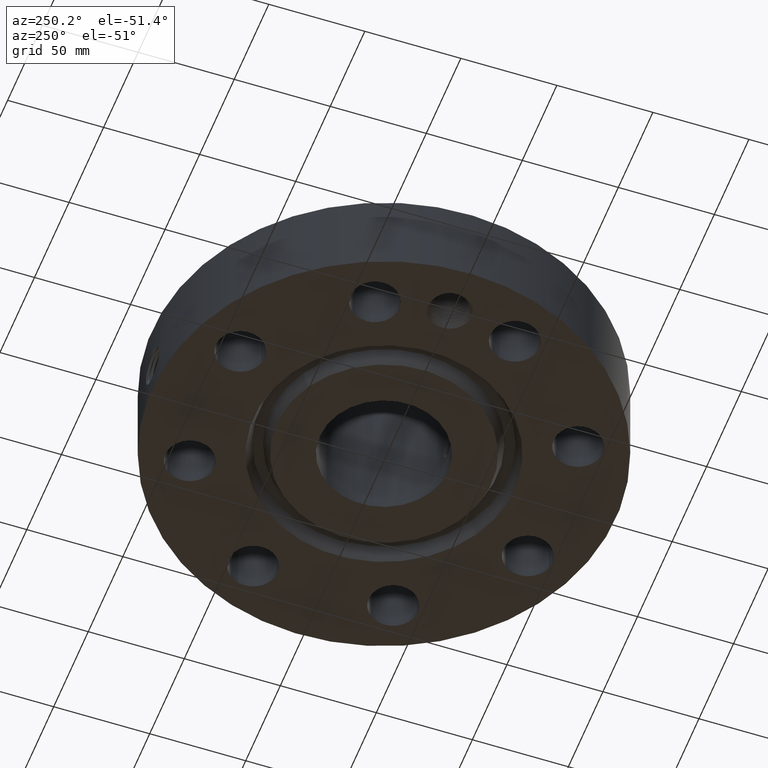
[diagram: clean part render]
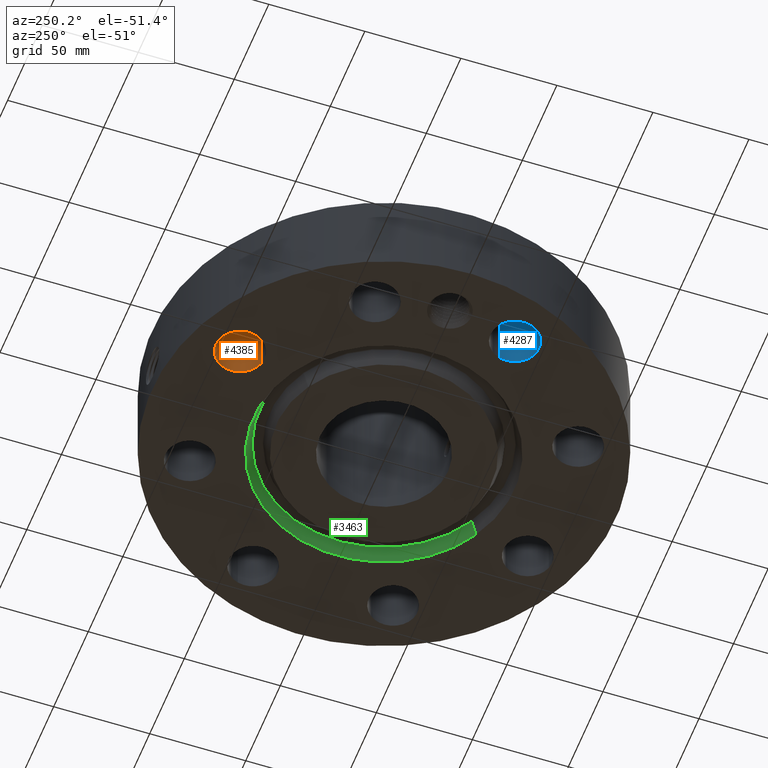
[diagram: same view with three faces highlighted in distinct colors, each labeled with its STEP entity id]
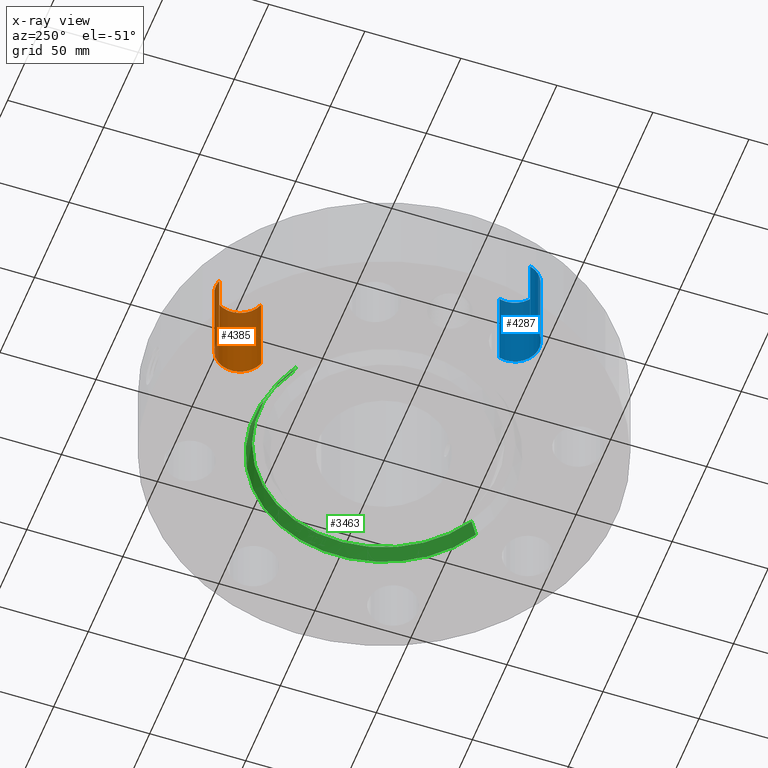
[diagram: x-ray of the same camera — body ghosted, the three highlighted faces saturated]
A machine part, auxiliary view with three faces highlighted in distinct colors.
The next image is the same camera in x-ray (body ghosted, the three faces saturated) — at least one of them is partly hidden behind the body in this view.
Their STEP definitions:

[orange] entity #4385 — the highlighted cylindrical surface (edge-blend (fillet) strip) has radius 12.7 mm, axis along (0, 0, -1).
#3048=AXIS2_PLACEMENT_3D('Circle Axis2P3D',#3046,#3047,$) ;
#4346=AXIS2_PLACEMENT_3D('Cylinder Axis2P3D',#4343,#4344,#4345) ;
#4376=AXIS2_PLACEMENT_3D('Circle Axis2P3D',#4374,#4375,$) ;
#3046=CARTESIAN_POINT('Axis2P3D Location',(-1.43506287137,3.46454824693,1.81200000001)) ;
#3050=CARTESIAN_POINT('Vertex',(-1.57583263695,3.94432306193,1.81200000001)) ;
#3052=CARTESIAN_POINT('Vertex',(-1.2942931058,2.98477343194,1.81200000001)) ;
#4343=CARTESIAN_POINT('Axis2P3D Location',(-1.43506287137,3.46454824693,1.80806299213)) ;
#4348=CARTESIAN_POINT('Line Origine',(-1.2942931058,2.98477343194,0.906000000004)) ;
#4352=CARTESIAN_POINT('Vertex',(-1.2942931058,2.98477343194,0.)) ;
#4359=CARTESIAN_POINT('Vertex',(-1.57583263695,3.94432306193,0.)) ;
#4362=CARTESIAN_POINT('Line Origine',(-1.57583263695,3.94432306193,0.906000000004)) ;
#4374=CARTESIAN_POINT('Axis2P3D Location',(-1.43506287137,3.46454824693,0.)) ;
#3047=DIRECTION('Axis2P3D Direction',(0.,0.,-0.0393700787402)) ;
#4344=DIRECTION('Axis2P3D Direction',(0.,0.,-0.0393700787402)) ;
#4345=DIRECTION('Axis2P3D XDirection',(-0.0110842335096,0.0377775444876,0.)) ;
#4349=DIRECTION('Vector Direction',(0.,0.,-0.0393700787402)) ;
#4363=DIRECTION('Vector Direction',(0.,0.,-0.0393700787402)) ;
#4375=DIRECTION('Axis2P3D Direction',(0.,0.,-0.0393700787402)) ;
#4350=VECTOR('Line Direction',#4349,0.0393700787402) ;
#4364=VECTOR('Line Direction',#4363,0.0393700787402) ;
#4380=ORIENTED_EDGE('',*,*,#4366,.F.) ;
#4381=ORIENTED_EDGE('',*,*,#4378,.T.) ;
#4382=ORIENTED_EDGE('',*,*,#4354,.T.) ;
#4383=ORIENTED_EDGE('',*,*,#3054,.F.) ;
#4385=ADVANCED_FACE('PartBody',(#4384),#4347,.F.) ;
#3049=CIRCLE('generated circle',#3048,0.500000000002) ;
#4377=CIRCLE('generated circle',#4376,0.500000000002) ;
#4347=CYLINDRICAL_SURFACE('generated cylinder',#4346,0.500000000002) ;
#3054=EDGE_CURVE('',#3051,#3053,#3049,.T.) ;
#4354=EDGE_CURVE('',#4353,#3053,#4351,.F.) ;
#4366=EDGE_CURVE('',#4360,#3051,#4365,.F.) ;
#4378=EDGE_CURVE('',#4360,#4353,#4377,.T.) ;
#4379=EDGE_LOOP('',(#4380,#4381,#4382,#4383)) ;
#4384=FACE_OUTER_BOUND('',#4379,.T.) ;
#4351=LINE('Line',#4348,#4350) ;
#4365=LINE('Line',#4362,#4364) ;
#3051=VERTEX_POINT('',#3050) ;
#3053=VERTEX_POINT('',#3052) ;
#4353=VERTEX_POINT('',#4352) ;
#4360=VERTEX_POINT('',#4359) ;

[blue] entity #4287 — the highlighted cylindrical surface (edge-blend (fillet) strip) has radius 12.7 mm, axis along (-0, 0, -1).
#3021=AXIS2_PLACEMENT_3D('Circle Axis2P3D',#3019,#3020,$) ;
#4260=AXIS2_PLACEMENT_3D('Cylinder Axis2P3D',#4257,#4258,#4259) ;
#4271=AXIS2_PLACEMENT_3D('Circle Axis2P3D',#4269,#4270,$) ;
#3014=CARTESIAN_POINT('Vertex',(-3.94432306193,-1.57583263695,1.81200000001)) ;
#3016=CARTESIAN_POINT('Vertex',(-2.98477343194,-1.2942931058,1.81200000001)) ;
#3019=CARTESIAN_POINT('Axis2P3D Location',(-3.46454824693,-1.43506287137,1.81200000001)) ;
#4257=CARTESIAN_POINT('Axis2P3D Location',(-3.46454824693,-1.43506287137,1.80806299213)) ;
#4262=CARTESIAN_POINT('Line Origine',(-2.98477343194,-1.2942931058,0.906000000004)) ;
#4266=CARTESIAN_POINT('Vertex',(-2.98477343194,-1.2942931058,0.)) ;
#4269=CARTESIAN_POINT('Axis2P3D Location',(-3.46454824693,-1.43506287137,0.)) ;
#4273=CARTESIAN_POINT('Vertex',(-3.94432306193,-1.57583263695,0.)) ;
#4276=CARTESIAN_POINT('Line Origine',(-3.94432306193,-1.57583263695,0.906000000004)) ;
#3020=DIRECTION('Axis2P3D Direction',(0.,0.,-0.0393700787402)) ;
#4258=DIRECTION('Axis2P3D Direction',(-0.,0.,-0.0393700787402)) ;
#4259=DIRECTION('Axis2P3D XDirection',(-0.0377775444876,-0.0110842335096,0.)) ;
#4263=DIRECTION('Vector Direction',(0.,0.,-0.0393700787402)) ;
#4270=DIRECTION('Axis2P3D Direction',(-0.,0.,-0.0393700787402)) ;
#4277=DIRECTION('Vector Direction',(0.,0.,-0.0393700787402)) ;
#4264=VECTOR('Line Direction',#4263,0.0393700787402) ;
#4278=VECTOR('Line Direction',#4277,0.0393700787402) ;
#4282=ORIENTED_EDGE('',*,*,#4268,.F.) ;
#4283=ORIENTED_EDGE('',*,*,#4275,.T.) ;
#4284=ORIENTED_EDGE('',*,*,#4280,.T.) ;
#4285=ORIENTED_EDGE('',*,*,#3023,.F.) ;
#4287=ADVANCED_FACE('PartBody',(#4286),#4261,.F.) ;
#3022=CIRCLE('generated circle',#3021,0.500000000002) ;
#4272=CIRCLE('generated circle',#4271,0.500000000002) ;
#4261=CYLINDRICAL_SURFACE('generated cylinder',#4260,0.500000000002) ;
#3023=EDGE_CURVE('',#3017,#3015,#3022,.T.) ;
#4268=EDGE_CURVE('',#4267,#3017,#4265,.F.) ;
#4275=EDGE_CURVE('',#4267,#4274,#4272,.T.) ;
#4280=EDGE_CURVE('',#4274,#3015,#4279,.F.) ;
#4281=EDGE_LOOP('',(#4282,#4283,#4284,#4285)) ;
#4286=FACE_OUTER_BOUND('',#4281,.T.) ;
#4265=LINE('Line',#4262,#4264) ;
#4279=LINE('Line',#4276,#4278) ;
#3015=VERTEX_POINT('',#3014) ;
#3017=VERTEX_POINT('',#3016) ;
#4267=VERTEX_POINT('',#4266) ;
#4274=VERTEX_POINT('',#4273) ;

[green] entity #3463 — the highlighted conical surface has half-angle 23 deg.
#2609=AXIS2_PLACEMENT_3D('Circle Axis2P3D',#2607,#2608,$) ;
#3436=AXIS2_PLACEMENT_3D('Cone Axis2P3D',#3433,#3434,#3435) ;
#3440=AXIS2_PLACEMENT_3D('Circle Axis2P3D',#3438,#3439,$) ;
#2607=CARTESIAN_POINT('Axis2P3D Location',(0.,0.,0.293721933856)) ;
#2611=CARTESIAN_POINT('Vertex',(1.22125143094,-2.23548574945,0.293721933856)) ;
#2613=CARTESIAN_POINT('Vertex',(-1.22125143094,2.23548574945,0.293721933856)) ;
#3433=CARTESIAN_POINT('Axis2P3D Location',(0.,0.,0.293721933856)) ;
#3438=CARTESIAN_POINT('Axis2P3D Location',(0.,0.,0.)) ;
#3442=CARTESIAN_POINT('Vertex',(-1.28102503916,2.34490060538,0.)) ;
#3444=CARTESIAN_POINT('Vertex',(1.28102503916,-2.34490060538,0.)) ;
#3447=CARTESIAN_POINT('Line Origine',(1.25113823505,-2.29019317742,0.146860966928)) ;
#3452=CARTESIAN_POINT('Line Origine',(-1.25113823505,2.29019317742,0.146860966928)) ;
#2608=DIRECTION('Axis2P3D Direction',(0.,0.,0.0393700787402)) ;
#3434=DIRECTION('Axis2P3D Direction',(-0.,-0.,-0.0393700787402)) ;
#3435=DIRECTION('Axis2P3D XDirection',(0.0188750212049,-0.0345504945626,0.)) ;
#3439=DIRECTION('Axis2P3D Direction',(0.,0.,-0.0393700787402)) ;
#3448=DIRECTION('Vector Direction',(0.00737505833565,-0.0134999537303,-0.0362403485611)) ;
#3453=DIRECTION('Vector Direction',(-0.00737505833565,0.0134999537303,-0.0362403485611)) ;
#3449=VECTOR('Line Direction',#3448,0.0393700787402) ;
#3454=VECTOR('Line Direction',#3453,0.0393700787402) ;
#3458=ORIENTED_EDGE('',*,*,#3446,.T.) ;
#3459=ORIENTED_EDGE('',*,*,#3451,.T.) ;
#3460=ORIENTED_EDGE('',*,*,#2615,.T.) ;
#3461=ORIENTED_EDGE('',*,*,#3456,.F.) ;
#3463=ADVANCED_FACE('PartBody',(#3462),#3437,.F.) ;
#2610=CIRCLE('generated circle',#2609,2.54732243612) ;
#3441=CIRCLE('generated circle',#3440,2.67200000001) ;
#3437=CONICAL_SURFACE('Cone',#3436,2.54732243612,0.401425727959) ;
#2615=EDGE_CURVE('',#2612,#2614,#2610,.T.) ;
#3446=EDGE_CURVE('',#3443,#3445,#3441,.T.) ;
#3451=EDGE_CURVE('',#3445,#2612,#3450,.F.) ;
#3456=EDGE_CURVE('',#3443,#2614,#3455,.F.) ;
#3457=EDGE_LOOP('',(#3458,#3459,#3460,#3461)) ;
#3462=FACE_OUTER_BOUND('',#3457,.T.) ;
#3450=LINE('Line',#3447,#3449) ;
#3455=LINE('Line',#3452,#3454) ;
#2612=VERTEX_POINT('',#2611) ;
#2614=VERTEX_POINT('',#2613) ;
#3443=VERTEX_POINT('',#3442) ;
#3445=VERTEX_POINT('',#3444) ;